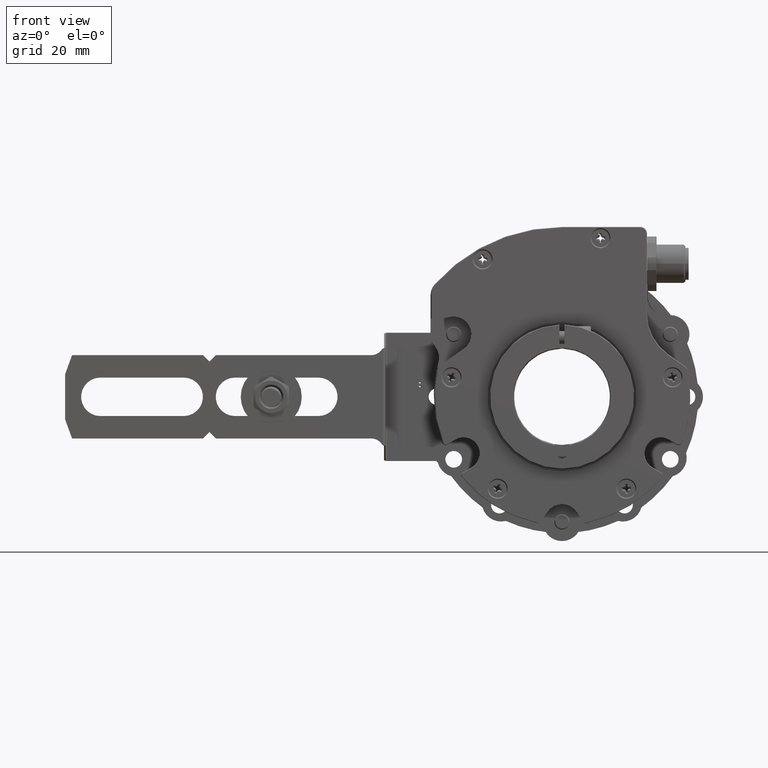
[diagram: clean part render]
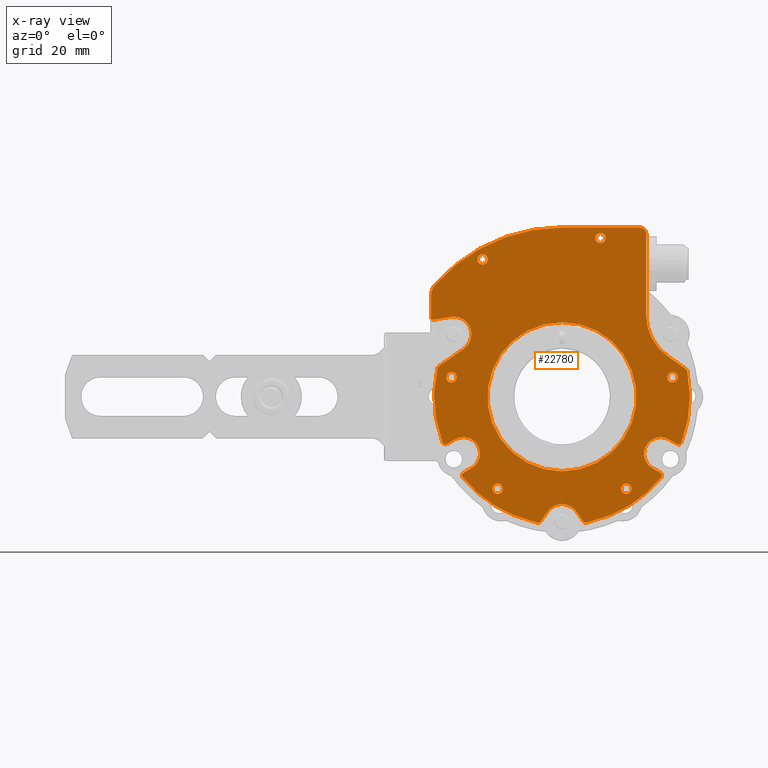
[diagram: x-ray — body ghosted, one internal face saturated and labeled with its STEP entity id]
A machine part, front view, then the same camera in x-ray: the body is ghosted and one INTERNAL B-rep face — a face not visible from any outside direction — is saturated and labeled: STEP entity #22780.
In plain terms, the highlighted planar face has unit normal (0, -1, 0).
Its self-contained STEP definition (entity closure, byte-faithful):
#23 = DIRECTION ( 'NONE',  ( 0.0000000000000000000, 0.0000000000000000000, -1.000000000000000000 ) ) ;
#71 = CARTESIAN_POINT ( 'NONE',  ( 34.46827135542729800, 8.673617379884035500E-016, 7.677686218342458300 ) ) ;
#81 = CARTESIAN_POINT ( 'NONE',  ( 0.0000000000000000000, 8.673617379884035500E-016, 52.79999999999999700 ) ) ;
#156 = EDGE_CURVE ( 'NONE', #17015, #39426, #8266, .T. ) ;
#170 = AXIS2_PLACEMENT_3D ( 'NONE', #3034, #13963, #39318 ) ;
#249 = CARTESIAN_POINT ( 'NONE',  ( -39.82635182233306600, 8.673617379884035500E-016, 24.01782813788613400 ) ) ;
#612 = EDGE_CURVE ( 'NONE', #29076, #36024, #23530, .T. ) ;
#636 = VERTEX_POINT ( 'NONE', #81 ) ;
#718 = CARTESIAN_POINT ( 'NONE',  ( 34.46827135542729800, 8.673617379884035500E-016, 6.077686218342461400 ) ) ;
#809 = CARTESIAN_POINT ( 'NONE',  ( -7.456542864244902100, 8.673617379884035500E-016, -38.32725932442939200 ) ) ;
#879 = CIRCLE ( 'NONE', #39196, 1.600000000000000800 ) ;
#1171 = CARTESIAN_POINT ( 'NONE',  ( 30.96579036634502200, 8.673617379884035500E-016, -25.16207119828520800 ) ) ;
#1192 = DIRECTION ( 'NONE',  ( 0.0000000000000000000, 0.0000000000000000000, -1.000000000000000000 ) ) ;
#1201 = DIRECTION ( 'NONE',  ( 0.0000000000000000000, -1.000000000000000000, 0.0000000000000000000 ) ) ;
#1244 = LINE ( 'NONE', #36156, #9742 ) ;
#1545 = EDGE_CURVE ( 'NONE', #2958, #44939, #30282, .T. ) ;
#1677 = ORIENTED_EDGE ( 'NONE', *, *, #11105, .T. ) ;
#1731 = ORIENTED_EDGE ( 'NONE', *, *, #29315, .T. ) ;
#1884 = DIRECTION ( 'NONE',  ( 0.0000000000000000000, 0.0000000000000000000, 1.000000000000000000 ) ) ;
#2067 = CARTESIAN_POINT ( 'NONE',  ( 20.07517527228646200, 8.673617379884035500E-016, -27.07032155011482300 ) ) ;
#2120 = EDGE_CURVE ( 'NONE', #2917, #27877, #21746, .T. ) ;
#2223 = VERTEX_POINT ( 'NONE', #1171 ) ;
#2231 = VERTEX_POINT ( 'NONE', #44575 ) ;
#2363 = FACE_BOUND ( 'NONE', #7240, .T. ) ;
#2452 = ORIENTED_EDGE ( 'NONE', *, *, #18770, .T. ) ;
#2459 = VECTOR ( 'NONE', #43955, 1000.000000000000000 ) ;
#2469 = EDGE_CURVE ( 'NONE', #20898, #23660, #8099, .T. ) ;
#2531 = AXIS2_PLACEMENT_3D ( 'NONE', #16836, #42199, #20504 ) ;
#2688 = LINE ( 'NONE', #16485, #40114 ) ;
#2733 = VECTOR ( 'NONE', #39721, 1000.000000000000100 ) ;
#2750 = AXIS2_PLACEMENT_3D ( 'NONE', #32240, #10493, #35852 ) ;
#2917 = VERTEX_POINT ( 'NONE', #12664 ) ;
#2940 = CARTESIAN_POINT ( 'NONE',  ( 2.847303808017595700E-015, 8.673617379884035500E-016, -23.25000000000000000 ) ) ;
#2958 = VERTEX_POINT ( 'NONE', #46754 ) ;
#2987 = CARTESIAN_POINT ( 'NONE',  ( -30.96579036634502200, 8.673617379884035500E-016, -25.16207119828521500 ) ) ;
#3034 = CARTESIAN_POINT ( 'NONE',  ( 28.50000000000000000, 8.673617379884035500E-016, 0.0000000000000000000 ) ) ;
#3210 = DIRECTION ( 'NONE',  ( 0.0000000000000000000, 0.0000000000000000000, -1.000000000000000000 ) ) ;
#3455 = ORIENTED_EDGE ( 'NONE', *, *, #42019, .F. ) ;
#3494 = CIRCLE ( 'NONE', #13583, 2.000000000000001800 ) ;
#3543 = DIRECTION ( 'NONE',  ( 0.0000000000000000000, 0.0000000000000000000, 1.000000000000000000 ) ) ;
#3550 = CARTESIAN_POINT ( 'NONE',  ( 0.0000000000000000000, 8.673617379884035500E-016, 0.0000000000000000000 ) ) ;
#3667 = EDGE_LOOP ( 'NONE', ( #14674, #13079, #1677, #4166, #18158, #36697, #45677, #27022, #37484, #14829, #15797, #4818, #11692, #44128, #31816, #9592, #2452, #40258, #37236, #17314, #32697, #6858, #3455, #24861, #14536, #9982, #3822, #10752, #18643, #12634, #19700, #12768, #15591, #19574, #43676, #1731, #31662, #12792 ) ) ;
#3683 = CIRCLE ( 'NONE', #4558, 1.599999999999997200 ) ;
#3790 = CARTESIAN_POINT ( 'NONE',  ( 4.505336243589449700, 8.673617379884035500E-016, -35.84532960006924200 ) ) ;
#3822 = ORIENTED_EDGE ( 'NONE', *, *, #32115, .T. ) ;
#4009 = DIRECTION ( 'NONE',  ( 0.0000000000000000000, -1.000000000000000000, 0.0000000000000000000 ) ) ;
#4151 = CARTESIAN_POINT ( 'NONE',  ( -39.99999999999999300, 8.673617379884035500E-016, 24.00263589089834300 ) ) ;
#4166 = ORIENTED_EDGE ( 'NONE', *, *, #24952, .T. ) ;
#4337 = DIRECTION ( 'NONE',  ( 0.0000000000000000000, 0.0000000000000000000, -1.000000000000000000 ) ) ;
#4426 = DIRECTION ( 'NONE',  ( 0.0000000000000000000, 0.0000000000000000000, -1.000000000000000000 ) ) ;
#4558 = AXIS2_PLACEMENT_3D ( 'NONE', #16943, #42319, #20610 ) ;
#4583 = EDGE_CURVE ( 'NONE', #25830, #36124, #21650, .T. ) ;
#4714 = DIRECTION ( 'NONE',  ( 0.0000000000000000000, -1.000000000000000000, 0.0000000000000000000 ) ) ;
#4764 = CIRCLE ( 'NONE', #5165, 1.599999999999997200 ) ;
#4818 = ORIENTED_EDGE ( 'NONE', *, *, #37714, .T. ) ;
#4958 = CARTESIAN_POINT ( 'NONE',  ( 32.90956523655881900, 8.673617379884035500E-016, 12.70314331352077800 ) ) ;
#5165 = AXIS2_PLACEMENT_3D ( 'NONE', #46621, #24932, #3210 ) ;
#5526 = VECTOR ( 'NONE', #7833, 1000.000000000000100 ) ;
#5710 = DIRECTION ( 'NONE',  ( 0.8660254037844387100, 0.0000000000000000000, -0.4999999999999997200 ) ) ;
#5798 = CIRCLE ( 'NONE', #44376, 1.600000000000000800 ) ;
#5899 = CIRCLE ( 'NONE', #40082, 1.599999999999997200 ) ;
#5922 = AXIS2_PLACEMENT_3D ( 'NONE', #41569, #19841, #45173 ) ;
#6366 = CARTESIAN_POINT ( 'NONE',  ( -34.46827135542729800, 8.673617379884035500E-016, 6.077686218342452500 ) ) ;
#6382 = CARTESIAN_POINT ( 'NONE',  ( -5.308201962077027300, 8.673617379884035500E-016, 30.10430928238725200 ) ) ;
#6740 = EDGE_LOOP ( 'NONE', ( #24458, #22684 ) ) ;
#6858 = ORIENTED_EDGE ( 'NONE', *, *, #2120, .T. ) ;
#6913 = AXIS2_PLACEMENT_3D ( 'NONE', #12713, #38075, #16338 ) ;
#6980 = AXIS2_PLACEMENT_3D ( 'NONE', #19019, #44381, #22673 ) ;
#7067 = CARTESIAN_POINT ( 'NONE',  ( -13.81866986173577600, 8.673617379884035500E-016, -9.675936805218736200 ) ) ;
#7240 = EDGE_LOOP ( 'NONE', ( #43205, #36816 ) ) ;
#7397 = EDGE_CURVE ( 'NONE', #43345, #21730, #39655, .T. ) ;
#7563 = EDGE_CURVE ( 'NONE', #16914, #31753, #15811, .T. ) ;
#7833 = DIRECTION ( 'NONE',  ( -0.8660254037844407100, -0.0000000000000000000, 0.4999999999999963900 ) ) ;
#7958 = VECTOR ( 'NONE', #46506, 1000.000000000000000 ) ;
#7989 = DIRECTION ( 'NONE',  ( 0.0000000000000000000, 0.0000000000000000000, -1.000000000000000000 ) ) ;
#8099 = CIRCLE ( 'NONE', #32119, 0.9999999999999991100 ) ;
#8137 = VERTEX_POINT ( 'NONE', #42337 ) ;
#8266 = CIRCLE ( 'NONE', #18970, 39.90000000000000600 ) ;
#8270 = CIRCLE ( 'NONE', #21235, 5.499999999999998200 ) ;
#8368 = DIRECTION ( 'NONE',  ( 0.0000000000000000000, -1.000000000000000000, 0.0000000000000000000 ) ) ;
#8435 = AXIS2_PLACEMENT_3D ( 'NONE', #25703, #4009, #29341 ) ;
#8437 = VERTEX_POINT ( 'NONE', #13861 ) ;
#8448 = DIRECTION ( 'NONE',  ( 0.0000000000000000000, -1.000000000000000000, 0.0000000000000000000 ) ) ;
#8483 = VERTEX_POINT ( 'NONE', #71 ) ;
#8545 = EDGE_CURVE ( 'NONE', #10854, #2917, #15194, .T. ) ;
#8587 = CARTESIAN_POINT ( 'NONE',  ( -24.75000000000006000, 8.673617379884035500E-016, 41.26825748732967700 ) ) ;
#8634 = DIRECTION ( 'NONE',  ( -0.8660254037844407100, 0.0000000000000000000, -0.4999999999999963900 ) ) ;
#8672 = DIRECTION ( 'NONE',  ( -0.0000000000000000000, 1.000000000000000000, -0.0000000000000000000 ) ) ;
#8718 = AXIS2_PLACEMENT_3D ( 'NONE', #13714, #39061, #17321 ) ;
#8798 = DIRECTION ( 'NONE',  ( 0.0000000000000000000, -1.000000000000000000, 0.0000000000000000000 ) ) ;
#8846 = EDGE_CURVE ( 'NONE', #45348, #18548, #2688, .T. ) ;
#9409 = VECTOR ( 'NONE', #24173, 1000.000000000000000 ) ;
#9452 = CARTESIAN_POINT ( 'NONE',  ( 30.74390183434760700, 8.673617379884035500E-016, -17.74999999999992900 ) ) ;
#9592 = ORIENTED_EDGE ( 'NONE', *, *, #43006, .T. ) ;
#9742 = VECTOR ( 'NONE', #10793, 1000.000000000000100 ) ;
#9885 = VERTEX_POINT ( 'NONE', #37148 ) ;
#9937 = CARTESIAN_POINT ( 'NONE',  ( 0.0000000000000000000, 8.673617379884035500E-016, 52.79999999999999700 ) ) ;
#9962 = EDGE_CURVE ( 'NONE', #21730, #45076, #46821, .T. ) ;
#9982 = ORIENTED_EDGE ( 'NONE', *, *, #33762, .T. ) ;
#9995 = DIRECTION ( 'NONE',  ( 0.0000000000000000000, 0.0000000000000000000, -1.000000000000000000 ) ) ;
#10112 = DIRECTION ( 'NONE',  ( -0.0000000000000000000, -1.000000000000000000, -0.0000000000000000000 ) ) ;
#10308 = AXIS2_PLACEMENT_3D ( 'NONE', #39184, #17460, #42830 ) ;
#10493 = DIRECTION ( 'NONE',  ( 0.0000000000000000000, -1.000000000000000000, 0.0000000000000000000 ) ) ;
#10577 = VERTEX_POINT ( 'NONE', #16151 ) ;
#10701 = EDGE_CURVE ( 'NONE', #14318, #16690, #3683, .T. ) ;
#10715 = AXIS2_PLACEMENT_3D ( 'NONE', #14197, #39529, #17799 ) ;
#10752 = ORIENTED_EDGE ( 'NONE', *, *, #29012, .T. ) ;
#10793 = DIRECTION ( 'NONE',  ( 0.8191520442889929100, 0.0000000000000000000, -0.5735764363510443800 ) ) ;
#10854 = VERTEX_POINT ( 'NONE', #3790 ) ;
#10911 = AXIS2_PLACEMENT_3D ( 'NONE', #42054, #20349, #45661 ) ;
#11054 = AXIS2_PLACEMENT_3D ( 'NONE', #13903, #39264, #17530 ) ;
#11062 = ORIENTED_EDGE ( 'NONE', *, *, #36513, .T. ) ;
#11081 = CIRCLE ( 'NONE', #25785, 5.499999999999998200 ) ;
#11105 = EDGE_CURVE ( 'NONE', #36024, #636, #46739, .T. ) ;
#11175 = EDGE_LOOP ( 'NONE', ( #38312, #22516 ) ) ;
#11420 = CARTESIAN_POINT ( 'NONE',  ( 33.31890183434759900, 8.673617379884035500E-016, -13.28996917051005700 ) ) ;
#11611 = CARTESIAN_POINT ( 'NONE',  ( -35.79999999999999700, 8.673617379884035500E-016, 31.67333263172665500 ) ) ;
#11692 = ORIENTED_EDGE ( 'NONE', *, *, #38882, .T. ) ;
#11864 = VERTEX_POINT ( 'NONE', #14786 ) ;
#11999 = FACE_BOUND ( 'NONE', #6740, .T. ) ;
#12375 = LINE ( 'NONE', #7067, #2733 ) ;
#12588 = EDGE_CURVE ( 'NONE', #17015, #35976, #39911, .T. ) ;
#12593 = CIRCLE ( 'NONE', #5922, 1.000000000000000900 ) ;
#12605 = CIRCLE ( 'NONE', #10715, 0.9999999999999940000 ) ;
#12634 = ORIENTED_EDGE ( 'NONE', *, *, #9962, .T. ) ;
#12664 = CARTESIAN_POINT ( 'NONE',  ( -4.505336243589449700, 8.673617379884035500E-016, -35.84532960006924200 ) ) ;
#12713 = CARTESIAN_POINT ( 'NONE',  ( 0.0000000000000000000, 8.673617379884035500E-016, 0.0000000000000000000 ) ) ;
#12731 = CARTESIAN_POINT ( 'NONE',  ( 37.27388805272031600, 8.673617379884035500E-016, -14.23612550637544600 ) ) ;
#12768 = ORIENTED_EDGE ( 'NONE', *, *, #23619, .T. ) ;
#12792 = ORIENTED_EDGE ( 'NONE', *, *, #20301, .F. ) ;
#12926 = DIRECTION ( 'NONE',  ( 0.0000000000000000000, 1.000000000000000000, 0.0000000000000000000 ) ) ;
#13079 = ORIENTED_EDGE ( 'NONE', *, *, #612, .T. ) ;
#13099 = DIRECTION ( 'NONE',  ( 0.0000000000000000000, 0.0000000000000000000, 1.000000000000000000 ) ) ;
#13128 = FACE_BOUND ( 'NONE', #35998, .T. ) ;
#13151 = AXIS2_PLACEMENT_3D ( 'NONE', #46943, #25257, #3543 ) ;
#13546 = VERTEX_POINT ( 'NONE', #8587 ) ;
#13583 = AXIS2_PLACEMENT_3D ( 'NONE', #35989, #14315, #39637 ) ;
#13604 = DIRECTION ( 'NONE',  ( 1.000000000000000000, 0.0000000000000000000, 0.0000000000000000000 ) ) ;
#13710 = EDGE_CURVE ( 'NONE', #8483, #46486, #27345, .T. ) ;
#13714 = CARTESIAN_POINT ( 'NONE',  ( 41.80000000000000400, 8.673617379884035500E-016, 25.40000000000016600 ) ) ;
#13844 = DIRECTION ( 'NONE',  ( 0.0000000000000000000, -1.000000000000000000, 0.0000000000000000000 ) ) ;
#13861 = CARTESIAN_POINT ( 'NONE',  ( 35.83970539475741600, 8.673617379884035500E-016, -14.74535578468681700 ) ) ;
#13903 = CARTESIAN_POINT ( 'NONE',  ( 36.33970539475740900, 8.673617379884035500E-016, -13.87933038090237900 ) ) ;
#13963 = DIRECTION ( 'NONE',  ( 0.0000000000000000000, -1.000000000000000000, 0.0000000000000000000 ) ) ;
#14197 = CARTESIAN_POINT ( 'NONE',  ( 7.456542864244899400, 8.673617379884035500E-016, -38.32725932442939900 ) ) ;
#14315 = DIRECTION ( 'NONE',  ( -0.0000000000000000000, 1.000000000000000000, -0.0000000000000000000 ) ) ;
#14318 = VERTEX_POINT ( 'NONE', #36607 ) ;
#14471 = CARTESIAN_POINT ( 'NONE',  ( -7.456542864244902100, 8.673617379884035500E-016, -39.32725932442939200 ) ) ;
#14536 = ORIENTED_EDGE ( 'NONE', *, *, #19936, .T. ) ;
#14674 = ORIENTED_EDGE ( 'NONE', *, *, #29429, .T. ) ;
#14786 = CARTESIAN_POINT ( 'NONE',  ( 26.30000000000000100, 8.673617379884035500E-016, 50.79999999999999700 ) ) ;
#14817 = CARTESIAN_POINT ( 'NONE',  ( -28.16890183434761500, 8.673617379884035500E-016, -22.21003082948978900 ) ) ;
#14829 = ORIENTED_EDGE ( 'NONE', *, *, #156, .T. ) ;
#15180 = LINE ( 'NONE', #25884, #5526 ) ;
#15194 = CIRCLE ( 'NONE', #8435, 5.499999999999998200 ) ;
#15236 = VERTEX_POINT ( 'NONE', #45547 ) ;
#15241 = VERTEX_POINT ( 'NONE', #38761 ) ;
#15355 = EDGE_CURVE ( 'NONE', #11864, #16914, #28375, .T. ) ;
#15591 = ORIENTED_EDGE ( 'NONE', *, *, #2469, .F. ) ;
#15685 = CARTESIAN_POINT ( 'NONE',  ( -38.61929592412998600, 8.673617379884035500E-016, 9.393720759812678600 ) ) ;
#15797 = ORIENTED_EDGE ( 'NONE', *, *, #30990, .T. ) ;
#15811 = CIRCLE ( 'NONE', #8718, 15.50000000000000000 ) ;
#15842 = VERTEX_POINT ( 'NONE', #42351 ) ;
#16045 = AXIS2_PLACEMENT_3D ( 'NONE', #30081, #8368, #33729 ) ;
#16151 = CARTESIAN_POINT ( 'NONE',  ( -37.27388805272031600, 8.673617379884035500E-016, -14.23612550637545300 ) ) ;
#16169 = ORIENTED_EDGE ( 'NONE', *, *, #40599, .T. ) ;
#16338 = DIRECTION ( 'NONE',  ( 0.0000000000000000000, 0.0000000000000000000, 1.000000000000000000 ) ) ;
#16485 = CARTESIAN_POINT ( 'NONE',  ( 28.16890183434762200, 8.673617379884035500E-016, -22.21003082948978100 ) ) ;
#16555 = CARTESIAN_POINT ( 'NONE',  ( -38.82438825973105900, 8.673617379884035500E-016, 9.202003926192260200 ) ) ;
#16690 = VERTEX_POINT ( 'NONE', #19307 ) ;
#16836 = CARTESIAN_POINT ( 'NONE',  ( -24.75000000000006000, 8.673617379884035500E-016, 42.86825748732967900 ) ) ;
#16914 = VERTEX_POINT ( 'NONE', #31505 ) ;
#16943 = CARTESIAN_POINT ( 'NONE',  ( -20.07517527228645400, 8.673617379884035500E-016, -28.67032155011482800 ) ) ;
#17015 = VERTEX_POINT ( 'NONE', #35300 ) ;
#17080 = EDGE_CURVE ( 'NONE', #2231, #10854, #12375, .T. ) ;
#17115 = VECTOR ( 'NONE', #24583, 999.9999999999998900 ) ;
#17268 = DIRECTION ( 'NONE',  ( 0.0000000000000000000, -1.000000000000000000, 0.0000000000000000000 ) ) ;
#17314 = ORIENTED_EDGE ( 'NONE', *, *, #17080, .T. ) ;
#17321 = DIRECTION ( 'NONE',  ( 0.0000000000000000000, 0.0000000000000000000, -1.000000000000000000 ) ) ;
#17460 = DIRECTION ( 'NONE',  ( 0.0000000000000000000, -1.000000000000000000, 0.0000000000000000000 ) ) ;
#17497 = CARTESIAN_POINT ( 'NONE',  ( 26.30000000000000100, 8.673617379884035500E-016, 52.79999999999999700 ) ) ;
#17530 = DIRECTION ( 'NONE',  ( -6.938893903907234700E-015, 0.0000000000000000000, -1.000000000000000000 ) ) ;
#17704 = LINE ( 'NONE', #14817, #35855 ) ;
#17799 = DIRECTION ( 'NONE',  ( 0.0000000000000000000, 0.0000000000000000000, -1.000000000000000000 ) ) ;
#17992 = VERTEX_POINT ( 'NONE', #2067 ) ;
#18158 = ORIENTED_EDGE ( 'NONE', *, *, #46715, .T. ) ;
#18440 = DIRECTION ( 'NONE',  ( 0.8660254037844391500, -0.0000000000000000000, 0.4999999999999990600 ) ) ;
#18548 = VERTEX_POINT ( 'NONE', #34191 ) ;
#18621 = CARTESIAN_POINT ( 'NONE',  ( 13.81866986173578100, 8.673617379884035500E-016, -9.675936805218752200 ) ) ;
#18640 = EDGE_CURVE ( 'NONE', #20898, #45546, #38330, .T. ) ;
#18642 = CARTESIAN_POINT ( 'NONE',  ( 10.11450387768230100, 8.673617379884035500E-016, -44.25897435897435600 ) ) ;
#18643 = ORIENTED_EDGE ( 'NONE', *, *, #7397, .T. ) ;
#18721 = CARTESIAN_POINT ( 'NONE',  ( -8.889178518051185300, 8.673617379884035500E-016, -38.89720433751271100 ) ) ;
#18770 = EDGE_CURVE ( 'NONE', #8137, #22179, #8270, .T. ) ;
#18967 = DIRECTION ( 'NONE',  ( 0.0000000000000000000, 1.000000000000000000, 0.0000000000000000000 ) ) ;
#18970 = AXIS2_PLACEMENT_3D ( 'NONE', #3550, #33044, #25716 ) ;
#19019 = CARTESIAN_POINT ( 'NONE',  ( 0.0000000000000000000, 8.673617379884035500E-016, 0.0000000000000000000 ) ) ;
#19262 = AXIS2_PLACEMENT_3D ( 'NONE', #40695, #18967, #44329 ) ;
#19307 = CARTESIAN_POINT ( 'NONE',  ( -20.07517527228645400, 8.673617379884035500E-016, -27.07032155011483000 ) ) ;
#19574 = ORIENTED_EDGE ( 'NONE', *, *, #18640, .T. ) ;
#19599 = AXIS2_PLACEMENT_3D ( 'NONE', #43437, #21733, #23 ) ;
#19700 = ORIENTED_EDGE ( 'NONE', *, *, #22520, .T. ) ;
#19841 = DIRECTION ( 'NONE',  ( -0.0000000000000000000, 1.000000000000000000, -0.0000000000000000000 ) ) ;
#19910 = CARTESIAN_POINT ( 'NONE',  ( 38.10013950781947800, 8.673617379884035500E-016, 7.847889492385218300 ) ) ;
#19929 = CARTESIAN_POINT ( 'NONE',  ( 20.07517527228646200, 8.673617379884035500E-016, -30.27032155011482600 ) ) ;
#19936 = EDGE_CURVE ( 'NONE', #40929, #35286, #11081, .T. ) ;
#19965 = VERTEX_POINT ( 'NONE', #2987 ) ;
#20041 = DIRECTION ( 'NONE',  ( 0.0000000000000000000, -1.000000000000000000, 0.0000000000000000000 ) ) ;
#20165 = CARTESIAN_POINT ( 'NONE',  ( 34.46827135542729800, 8.673617379884035500E-016, 4.477686218342463500 ) ) ;
#20301 = EDGE_CURVE ( 'NONE', #15236, #25830, #37146, .T. ) ;
#20349 = DIRECTION ( 'NONE',  ( 0.0000000000000000000, -1.000000000000000000, 0.0000000000000000000 ) ) ;
#20449 = ORIENTED_EDGE ( 'NONE', *, *, #1545, .T. ) ;
#20504 = DIRECTION ( 'NONE',  ( 0.0000000000000000000, 0.0000000000000000000, -1.000000000000000000 ) ) ;
#20517 = FACE_BOUND ( 'NONE', #11175, .T. ) ;
#20610 = DIRECTION ( 'NONE',  ( 0.0000000000000000000, 0.0000000000000000000, -1.000000000000000000 ) ) ;
#20719 = CARTESIAN_POINT ( 'NONE',  ( -39.54476987447697700, 8.673617379884035500E-016, 34.98644273964784900 ) ) ;
#20898 = VERTEX_POINT ( 'NONE', #15685 ) ;
#20914 = CIRCLE ( 'NONE', #19599, 1.000000000000000900 ) ;
#21013 = CARTESIAN_POINT ( 'NONE',  ( 24.30000000000000100, 8.673617379884035500E-016, 52.79999999999999700 ) ) ;
#21235 = AXIS2_PLACEMENT_3D ( 'NONE', #18642, #43993, #22282 ) ;
#21271 = DIRECTION ( 'NONE',  ( 0.0000000000000000000, -1.000000000000000000, 0.0000000000000000000 ) ) ;
#21650 = CIRCLE ( 'NONE', #42796, 1.000000000000000900 ) ;
#21652 = FACE_BOUND ( 'NONE', #31822, .T. ) ;
#21730 = VERTEX_POINT ( 'NONE', #43989 ) ;
#21733 = DIRECTION ( 'NONE',  ( -0.0000000000000000000, 1.000000000000000000, -0.0000000000000000000 ) ) ;
#21746 = LINE ( 'NONE', #18621, #2459 ) ;
#21916 = CIRCLE ( 'NONE', #16045, 0.9999999999999940000 ) ;
#22146 = CIRCLE ( 'NONE', #25096, 39.90000000000000600 ) ;
#22179 = VERTEX_POINT ( 'NONE', #46497 ) ;
#22282 = DIRECTION ( 'NONE',  ( 0.0000000000000000000, 0.0000000000000000000, 1.000000000000000000 ) ) ;
#22516 = ORIENTED_EDGE ( 'NONE', *, *, #44099, .F. ) ;
#22520 = EDGE_CURVE ( 'NONE', #45076, #10577, #12593, .T. ) ;
#22673 = DIRECTION ( 'NONE',  ( 0.0000000000000000000, 0.0000000000000000000, 1.000000000000000000 ) ) ;
#22684 = ORIENTED_EDGE ( 'NONE', *, *, #36572, .T. ) ;
#22717 = EDGE_CURVE ( 'NONE', #44939, #2958, #33566, .T. ) ;
#22719 = EDGE_CURVE ( 'NONE', #46486, #8483, #23898, .T. ) ;
#22780 = ADVANCED_FACE ( 'NONE', ( #11999, #40927, #13128, #21652, #2363, #39784, #30144, #20517 ), #35665, .F. ) ;
#22889 = DIRECTION ( 'NONE',  ( 0.0000000000000000000, -1.000000000000000000, 0.0000000000000000000 ) ) ;
#22896 = CARTESIAN_POINT ( 'NONE',  ( -33.77499074759302300, 8.673617379884035500E-016, 19.50000000000016000 ) ) ;
#23073 = AXIS2_PLACEMENT_3D ( 'NONE', #45292, #23580, #1884 ) ;
#23521 = EDGE_LOOP ( 'NONE', ( #16169, #32730 ) ) ;
#23530 = CIRCLE ( 'NONE', #39941, 5.000000000000000900 ) ;
#23539 = DIRECTION ( 'NONE',  ( 0.0000000000000000000, 0.0000000000000000000, -1.000000000000000000 ) ) ;
#23580 = DIRECTION ( 'NONE',  ( 0.0000000000000000000, 1.000000000000000000, 0.0000000000000000000 ) ) ;
#23619 = EDGE_CURVE ( 'NONE', #10577, #23660, #22146, .T. ) ;
#23660 = VERTEX_POINT ( 'NONE', #16555 ) ;
#23898 = CIRCLE ( 'NONE', #32661, 1.599999999999997200 ) ;
#24049 = CARTESIAN_POINT ( 'NONE',  ( -30.62032034766227900, 8.673617379884035500E-016, 14.99466375641069900 ) ) ;
#24173 = DIRECTION ( 'NONE',  ( 0.8191520442889931300, 0.0000000000000000000, 0.5735764363510441600 ) ) ;
#24458 = ORIENTED_EDGE ( 'NONE', *, *, #10701, .T. ) ;
#24495 = VECTOR ( 'NONE', #39483, 1000.000000000000000 ) ;
#24522 = AXIS2_PLACEMENT_3D ( 'NONE', #9452, #34787, #13099 ) ;
#24583 = DIRECTION ( 'NONE',  ( -0.9848077530122089100, 0.0000000000000000000, -0.1736481776669261400 ) ) ;
#24827 = VERTEX_POINT ( 'NONE', #19929 ) ;
#24861 = ORIENTED_EDGE ( 'NONE', *, *, #36396, .F. ) ;
#24932 = DIRECTION ( 'NONE',  ( 0.0000000000000000000, -1.000000000000000000, 0.0000000000000000000 ) ) ;
#24952 = EDGE_CURVE ( 'NONE', #636, #42899, #28280, .T. ) ;
#25096 = AXIS2_PLACEMENT_3D ( 'NONE', #34624, #12926, #38281 ) ;
#25097 = AXIS2_PLACEMENT_3D ( 'NONE', #29118, #28065, #7989 ) ;
#25119 = VERTEX_POINT ( 'NONE', #25302 ) ;
#25257 = DIRECTION ( 'NONE',  ( 0.0000000000000000000, 1.000000000000000000, 0.0000000000000000000 ) ) ;
#25283 = EDGE_CURVE ( 'NONE', #45546, #25119, #44690, .T. ) ;
#25302 = CARTESIAN_POINT ( 'NONE',  ( -34.73005572476111500, 8.673617379884035500E-016, 24.91644264156730800 ) ) ;
#25703 = CARTESIAN_POINT ( 'NONE',  ( 0.0000000000000000000, 8.673617379884035500E-016, -39.00000000000000000 ) ) ;
#25716 = DIRECTION ( 'NONE',  ( 0.0000000000000000000, 0.0000000000000000000, 1.000000000000000000 ) ) ;
#25785 = AXIS2_PLACEMENT_3D ( 'NONE', #31854, #10112, #35449 ) ;
#25830 = VERTEX_POINT ( 'NONE', #4151 ) ;
#25872 = DIRECTION ( 'NONE',  ( 0.0000000000000000000, 0.0000000000000000000, -1.000000000000000000 ) ) ;
#25884 = CARTESIAN_POINT ( 'NONE',  ( 33.31890183434759900, 8.673617379884035500E-016, -13.28996917051005700 ) ) ;
#25905 = CARTESIAN_POINT ( 'NONE',  ( 11.99999999999998900, 8.673617379884035500E-016, 51.10000000000000100 ) ) ;
#26056 = DIRECTION ( 'NONE',  ( 0.0000000000000000000, -1.000000000000000000, 0.0000000000000000000 ) ) ;
#26141 = DIRECTION ( 'NONE',  ( 0.0000000000000000000, -1.000000000000000000, 0.0000000000000000000 ) ) ;
#26376 = CARTESIAN_POINT ( 'NONE',  ( -30.68970539475742500, 8.673617379884035500E-016, -23.66541744366655600 ) ) ;
#26408 = CARTESIAN_POINT ( 'NONE',  ( -39.99999999999999300, 8.673617379884035500E-016, 25.00263589089834300 ) ) ;
#26440 = EDGE_CURVE ( 'NONE', #2231, #42361, #21916, .T. ) ;
#26527 = DIRECTION ( 'NONE',  ( 0.0000000000000000000, 0.0000000000000000000, -1.000000000000000000 ) ) ;
#26687 = CARTESIAN_POINT ( 'NONE',  ( -33.31890183434759900, 8.673617379884035500E-016, -13.28996917051006400 ) ) ;
#26975 = VERTEX_POINT ( 'NONE', #25905 ) ;
#27022 = ORIENTED_EDGE ( 'NONE', *, *, #43359, .T. ) ;
#27345 = CIRCLE ( 'NONE', #36828, 1.599999999999997200 ) ;
#27777 = AXIS2_PLACEMENT_3D ( 'NONE', #6366, #31748, #9995 ) ;
#27877 = VERTEX_POINT ( 'NONE', #37099 ) ;
#28065 = DIRECTION ( 'NONE',  ( 0.0000000000000000000, -1.000000000000000000, 0.0000000000000000000 ) ) ;
#28280 = LINE ( 'NONE', #9937, #46418 ) ;
#28375 = LINE ( 'NONE', #17497, #7958 ) ;
#28440 = ORIENTED_EDGE ( 'NONE', *, *, #36589, .T. ) ;
#28780 = ORIENTED_EDGE ( 'NONE', *, *, #39581, .T. ) ;
#29012 = EDGE_CURVE ( 'NONE', #42618, #43345, #17704, .T. ) ;
#29016 = LINE ( 'NONE', #6382, #17115 ) ;
#29076 = VERTEX_POINT ( 'NONE', #33511 ) ;
#29095 = EDGE_CURVE ( 'NONE', #17992, #24827, #5798, .T. ) ;
#29118 = CARTESIAN_POINT ( 'NONE',  ( -34.46827135542729800, 8.673617379884035500E-016, 6.077686218342452500 ) ) ;
#29274 = ORIENTED_EDGE ( 'NONE', *, *, #43143, .T. ) ;
#29315 = EDGE_CURVE ( 'NONE', #25119, #36124, #29016, .T. ) ;
#29341 = DIRECTION ( 'NONE',  ( 0.0000000000000000000, 0.0000000000000000000, -1.000000000000000000 ) ) ;
#29375 = AXIS2_PLACEMENT_3D ( 'NONE', #22896, #1201, #26527 ) ;
#29429 = EDGE_CURVE ( 'NONE', #15236, #29076, #34144, .T. ) ;
#29929 = CARTESIAN_POINT ( 'NONE',  ( 28.16890183434761500, 8.673617379884035500E-016, -22.21003082948979200 ) ) ;
#30078 = DIRECTION ( 'NONE',  ( 0.0000000000000000000, 0.0000000000000000000, -1.000000000000000000 ) ) ;
#30081 = CARTESIAN_POINT ( 'NONE',  ( 7.456542864244899400, 8.673617379884035500E-016, -38.32725932442939900 ) ) ;
#30144 = FACE_OUTER_BOUND ( 'NONE', #3667, .T. ) ;
#30167 = CARTESIAN_POINT ( 'NONE',  ( 20.07517527228646200, 8.673617379884035500E-016, -28.67032155011482400 ) ) ;
#30282 = CIRCLE ( 'NONE', #25097, 1.599999999999997200 ) ;
#30381 = CARTESIAN_POINT ( 'NONE',  ( 30.18970539475743200, 8.673617379884035500E-016, -24.53144284745099700 ) ) ;
#30526 = CARTESIAN_POINT ( 'NONE',  ( -39.99999999999999300, 8.673617379884035500E-016, 25.00263589089834300 ) ) ;
#30990 = EDGE_CURVE ( 'NONE', #39426, #8437, #44223, .T. ) ;
#31360 = AXIS2_PLACEMENT_3D ( 'NONE', #809, #26141, #4426 ) ;
#31397 = CIRCLE ( 'NONE', #31360, 1.000000000000000900 ) ;
#31502 = CARTESIAN_POINT ( 'NONE',  ( 38.67371594417053900, 8.673617379884035500E-016, 8.667041536674240400 ) ) ;
#31505 = CARTESIAN_POINT ( 'NONE',  ( 26.30000000000000100, 8.673617379884035500E-016, 25.40000000000016600 ) ) ;
#31662 = ORIENTED_EDGE ( 'NONE', *, *, #4583, .F. ) ;
#31748 = DIRECTION ( 'NONE',  ( 0.0000000000000000000, -1.000000000000000000, 0.0000000000000000000 ) ) ;
#31753 = VERTEX_POINT ( 'NONE', #4958 ) ;
#31816 = ORIENTED_EDGE ( 'NONE', *, *, #46933, .T. ) ;
#31822 = EDGE_LOOP ( 'NONE', ( #11062, #28440 ) ) ;
#31854 = CARTESIAN_POINT ( 'NONE',  ( -10.11450387768230100, 8.673617379884035500E-016, -44.25897435897435600 ) ) ;
#32060 = CARTESIAN_POINT ( 'NONE',  ( -40.80000000000000400, 8.673617379884035500E-016, 19.50000000000017100 ) ) ;
#32078 = CARTESIAN_POINT ( 'NONE',  ( -7.865459943235269000, 8.673617379884035500E-016, -39.23983086820553700 ) ) ;
#32115 = EDGE_CURVE ( 'NONE', #19965, #42618, #20914, .T. ) ;
#32119 = AXIS2_PLACEMENT_3D ( 'NONE', #42981, #21271, #46609 ) ;
#32240 = CARTESIAN_POINT ( 'NONE',  ( 11.99999999999998900, 8.673617379884035500E-016, 49.50000000000000000 ) ) ;
#32619 = EDGE_LOOP ( 'NONE', ( #34559, #20449 ) ) ;
#32661 = AXIS2_PLACEMENT_3D ( 'NONE', #39001, #17268, #42662 ) ;
#32697 = ORIENTED_EDGE ( 'NONE', *, *, #8545, .T. ) ;
#32708 = CIRCLE ( 'NONE', #10308, 1.599999999999997200 ) ;
#32730 = ORIENTED_EDGE ( 'NONE', *, *, #29095, .T. ) ;
#33044 = DIRECTION ( 'NONE',  ( 0.0000000000000000000, 1.000000000000000000, 0.0000000000000000000 ) ) ;
#33385 = VERTEX_POINT ( 'NONE', #2940 ) ;
#33511 = CARTESIAN_POINT ( 'NONE',  ( -40.79999999999999700, 8.673617379884035500E-016, 31.67333263172665500 ) ) ;
#33566 = CIRCLE ( 'NONE', #27777, 1.599999999999997200 ) ;
#33729 = DIRECTION ( 'NONE',  ( 0.0000000000000000000, 0.0000000000000000000, -1.000000000000000000 ) ) ;
#33762 = EDGE_CURVE ( 'NONE', #35286, #19965, #35586, .T. ) ;
#33816 = DIRECTION ( 'NONE',  ( 0.0000000000000000000, 0.0000000000000000000, -1.000000000000000000 ) ) ;
#34035 = DIRECTION ( 'NONE',  ( -6.938893903907222100E-015, 0.0000000000000000000, -1.000000000000000000 ) ) ;
#34144 = LINE ( 'NONE', #32060, #24495 ) ;
#34168 = DIRECTION ( 'NONE',  ( 0.0000000000000000000, 0.0000000000000000000, -1.000000000000000000 ) ) ;
#34191 = CARTESIAN_POINT ( 'NONE',  ( 30.68970539475743200, 8.673617379884035500E-016, -23.66541744366655200 ) ) ;
#34270 = CARTESIAN_POINT ( 'NONE',  ( -34.46827135542729800, 8.673617379884035500E-016, 4.477686218342454600 ) ) ;
#34559 = ORIENTED_EDGE ( 'NONE', *, *, #22717, .T. ) ;
#34624 = CARTESIAN_POINT ( 'NONE',  ( 0.0000000000000000000, 8.673617379884035500E-016, 0.0000000000000000000 ) ) ;
#34787 = DIRECTION ( 'NONE',  ( 0.0000000000000000000, -1.000000000000000000, 0.0000000000000000000 ) ) ;
#35257 = VERTEX_POINT ( 'NONE', #11420 ) ;
#35286 = VERTEX_POINT ( 'NONE', #18721 ) ;
#35300 = CARTESIAN_POINT ( 'NONE',  ( 39.07957754143955500, 8.673617379884035500E-016, 8.049634723551941200 ) ) ;
#35449 = DIRECTION ( 'NONE',  ( 0.0000000000000000000, 0.0000000000000000000, 1.000000000000000000 ) ) ;
#35503 = CIRCLE ( 'NONE', #6980, 23.25000000000000000 ) ;
#35527 = CARTESIAN_POINT ( 'NONE',  ( 11.99999999999998900, 8.673617379884035500E-016, 49.50000000000000000 ) ) ;
#35586 = CIRCLE ( 'NONE', #6913, 39.90000000000000600 ) ;
#35665 = PLANE ( 'NONE',  #170 ) ;
#35852 = DIRECTION ( 'NONE',  ( 0.0000000000000000000, 0.0000000000000000000, -1.000000000000000000 ) ) ;
#35855 = VECTOR ( 'NONE', #18440, 1000.000000000000000 ) ;
#35976 = VERTEX_POINT ( 'NONE', #31502 ) ;
#35989 = CARTESIAN_POINT ( 'NONE',  ( 24.30000000000000100, 8.673617379884035500E-016, 50.79999999999999700 ) ) ;
#35998 = EDGE_LOOP ( 'NONE', ( #28780, #29274 ) ) ;
#36024 = VERTEX_POINT ( 'NONE', #20719 ) ;
#36124 = VERTEX_POINT ( 'NONE', #249 ) ;
#36156 = CARTESIAN_POINT ( 'NONE',  ( 16.79544052503335600, 8.673617379884035500E-016, 23.98637490818222400 ) ) ;
#36396 = EDGE_CURVE ( 'NONE', #40929, #36667, #37086, .T. ) ;
#36513 = EDGE_CURVE ( 'NONE', #9885, #26975, #5899, .T. ) ;
#36572 = EDGE_CURVE ( 'NONE', #16690, #14318, #4764, .T. ) ;
#36589 = EDGE_CURVE ( 'NONE', #26975, #9885, #43331, .T. ) ;
#36607 = CARTESIAN_POINT ( 'NONE',  ( -20.07517527228645400, 8.673617379884035500E-016, -30.27032155011482600 ) ) ;
#36667 = VERTEX_POINT ( 'NONE', #14471 ) ;
#36697 = ORIENTED_EDGE ( 'NONE', *, *, #15355, .T. ) ;
#36816 = ORIENTED_EDGE ( 'NONE', *, *, #13710, .T. ) ;
#36828 = AXIS2_PLACEMENT_3D ( 'NONE', #718, #26056, #4337 ) ;
#37034 = AXIS2_PLACEMENT_3D ( 'NONE', #30526, #8798, #34168 ) ;
#37086 = CIRCLE ( 'NONE', #10911, 1.000000000000000900 ) ;
#37099 = CARTESIAN_POINT ( 'NONE',  ( -6.705581468056939400, 8.673617379884035500E-016, -38.98760543173632700 ) ) ;
#37146 = CIRCLE ( 'NONE', #37034, 1.000000000000000900 ) ;
#37148 = CARTESIAN_POINT ( 'NONE',  ( 11.99999999999998900, 8.673617379884035500E-016, 47.90000000000000600 ) ) ;
#37236 = ORIENTED_EDGE ( 'NONE', *, *, #26440, .F. ) ;
#37484 = ORIENTED_EDGE ( 'NONE', *, *, #12588, .F. ) ;
#37714 = EDGE_CURVE ( 'NONE', #8437, #35257, #15180, .T. ) ;
#38075 = DIRECTION ( 'NONE',  ( 0.0000000000000000000, 1.000000000000000000, 0.0000000000000000000 ) ) ;
#38118 = CIRCLE ( 'NONE', #2531, 1.599999999999997200 ) ;
#38281 = DIRECTION ( 'NONE',  ( 0.0000000000000000000, 0.0000000000000000000, 1.000000000000000000 ) ) ;
#38312 = ORIENTED_EDGE ( 'NONE', *, *, #39800, .F. ) ;
#38330 = LINE ( 'NONE', #46026, #9409 ) ;
#38761 = CARTESIAN_POINT ( 'NONE',  ( 0.0000000000000000000, 8.673617379884035500E-016, 23.25000000000000000 ) ) ;
#38882 = EDGE_CURVE ( 'NONE', #35257, #45348, #45767, .T. ) ;
#39001 = CARTESIAN_POINT ( 'NONE',  ( 34.46827135542729800, 8.673617379884035500E-016, 6.077686218342461400 ) ) ;
#39061 = DIRECTION ( 'NONE',  ( 0.0000000000000000000, -1.000000000000000000, 0.0000000000000000000 ) ) ;
#39123 = CARTESIAN_POINT ( 'NONE',  ( 7.456542864244899400, 8.673617379884035500E-016, -39.32725932442939200 ) ) ;
#39184 = CARTESIAN_POINT ( 'NONE',  ( -24.75000000000006000, 8.673617379884035500E-016, 42.86825748732967900 ) ) ;
#39196 = AXIS2_PLACEMENT_3D ( 'NONE', #44597, #22889, #1192 ) ;
#39197 = DIRECTION ( 'NONE',  ( 0.0000000000000000000, 0.0000000000000000000, -1.000000000000000000 ) ) ;
#39264 = DIRECTION ( 'NONE',  ( -0.0000000000000000000, 1.000000000000000000, -0.0000000000000000000 ) ) ;
#39318 = DIRECTION ( 'NONE',  ( 0.0000000000000000000, -0.0000000000000000000, -1.000000000000000000 ) ) ;
#39426 = VERTEX_POINT ( 'NONE', #12731 ) ;
#39483 = DIRECTION ( 'NONE',  ( 4.951339166780651200E-016, 0.0000000000000000000, 1.000000000000000000 ) ) ;
#39492 = CARTESIAN_POINT ( 'NONE',  ( -28.16890183434761500, 8.673617379884035500E-016, -22.21003082948978900 ) ) ;
#39529 = DIRECTION ( 'NONE',  ( 0.0000000000000000000, -1.000000000000000000, 0.0000000000000000000 ) ) ;
#39581 = EDGE_CURVE ( 'NONE', #13546, #15842, #32708, .T. ) ;
#39637 = DIRECTION ( 'NONE',  ( 0.0000000000000000000, 0.0000000000000000000, -1.000000000000000000 ) ) ;
#39655 = CIRCLE ( 'NONE', #41227, 5.149999999999998600 ) ;
#39721 = DIRECTION ( 'NONE',  ( -0.5735764363510468300, 0.0000000000000000000, 0.8191520442889912400 ) ) ;
#39784 = FACE_BOUND ( 'NONE', #23521, .T. ) ;
#39800 = EDGE_CURVE ( 'NONE', #15241, #33385, #35503, .T. ) ;
#39911 = CIRCLE ( 'NONE', #45281, 1.000000000000031300 ) ;
#39941 = AXIS2_PLACEMENT_3D ( 'NONE', #11611, #43644, #25872 ) ;
#40082 = AXIS2_PLACEMENT_3D ( 'NONE', #35527, #13844, #39197 ) ;
#40114 = VECTOR ( 'NONE', #5710, 1000.000000000000100 ) ;
#40258 = ORIENTED_EDGE ( 'NONE', *, *, #42992, .F. ) ;
#40412 = CIRCLE ( 'NONE', #13151, 39.90000000000000600 ) ;
#40599 = EDGE_CURVE ( 'NONE', #24827, #17992, #879, .T. ) ;
#40695 = CARTESIAN_POINT ( 'NONE',  ( 0.0000000000000000000, 8.673617379884035500E-016, 0.0000000000000000000 ) ) ;
#40927 = FACE_BOUND ( 'NONE', #32619, .T. ) ;
#40929 = VERTEX_POINT ( 'NONE', #32078 ) ;
#41227 = AXIS2_PLACEMENT_3D ( 'NONE', #41765, #20041, #45373 ) ;
#41569 = CARTESIAN_POINT ( 'NONE',  ( -36.33970539475740900, 8.673617379884035500E-016, -13.87933038090238500 ) ) ;
#41765 = CARTESIAN_POINT ( 'NONE',  ( -30.74390183434760700, 8.673617379884035500E-016, -17.74999999999992900 ) ) ;
#42019 = EDGE_CURVE ( 'NONE', #36667, #27877, #31397, .T. ) ;
#42054 = CARTESIAN_POINT ( 'NONE',  ( -7.456542864244902100, 8.673617379884035500E-016, -38.32725932442939200 ) ) ;
#42199 = DIRECTION ( 'NONE',  ( 0.0000000000000000000, -1.000000000000000000, 0.0000000000000000000 ) ) ;
#42319 = DIRECTION ( 'NONE',  ( 0.0000000000000000000, -1.000000000000000000, 0.0000000000000000000 ) ) ;
#42337 = CARTESIAN_POINT ( 'NONE',  ( 8.889178518051192400, 8.673617379884035500E-016, -38.89720433751271100 ) ) ;
#42351 = CARTESIAN_POINT ( 'NONE',  ( -24.75000000000006000, 8.673617379884035500E-016, 44.46825748732967300 ) ) ;
#42361 = VERTEX_POINT ( 'NONE', #39123 ) ;
#42618 = VERTEX_POINT ( 'NONE', #26376 ) ;
#42662 = DIRECTION ( 'NONE',  ( 0.0000000000000000000, 0.0000000000000000000, -1.000000000000000000 ) ) ;
#42734 = AXIS2_PLACEMENT_3D ( 'NONE', #30381, #8672, #34035 ) ;
#42796 = AXIS2_PLACEMENT_3D ( 'NONE', #26408, #4714, #30078 ) ;
#42830 = DIRECTION ( 'NONE',  ( 0.0000000000000000000, 0.0000000000000000000, -1.000000000000000000 ) ) ;
#42899 = VERTEX_POINT ( 'NONE', #21013 ) ;
#42981 = CARTESIAN_POINT ( 'NONE',  ( -38.04571948777893900, 8.673617379884035500E-016, 8.574568715523685800 ) ) ;
#42992 = EDGE_CURVE ( 'NONE', #42361, #22179, #12605, .T. ) ;
#43006 = EDGE_CURVE ( 'NONE', #2223, #8137, #40412, .T. ) ;
#43143 = EDGE_CURVE ( 'NONE', #15842, #13546, #38118, .T. ) ;
#43205 = ORIENTED_EDGE ( 'NONE', *, *, #22719, .T. ) ;
#43331 = CIRCLE ( 'NONE', #2750, 1.599999999999997200 ) ;
#43345 = VERTEX_POINT ( 'NONE', #39492 ) ;
#43359 = EDGE_CURVE ( 'NONE', #31753, #35976, #1244, .T. ) ;
#43437 = CARTESIAN_POINT ( 'NONE',  ( -30.18970539475742500, 8.673617379884035500E-016, -24.53144284745100000 ) ) ;
#43644 = DIRECTION ( 'NONE',  ( -0.0000000000000000000, 1.000000000000000000, -0.0000000000000000000 ) ) ;
#43676 = ORIENTED_EDGE ( 'NONE', *, *, #25283, .T. ) ;
#43712 = CIRCLE ( 'NONE', #19262, 23.25000000000000000 ) ;
#43736 = CIRCLE ( 'NONE', #42734, 1.000000000000000900 ) ;
#43955 = DIRECTION ( 'NONE',  ( -0.5735764363510472700, 0.0000000000000000000, -0.8191520442889909100 ) ) ;
#43989 = CARTESIAN_POINT ( 'NONE',  ( -33.31890183434759900, 8.673617379884035500E-016, -13.28996917051006400 ) ) ;
#43993 = DIRECTION ( 'NONE',  ( -0.0000000000000000000, -1.000000000000000000, -0.0000000000000000000 ) ) ;
#44099 = EDGE_CURVE ( 'NONE', #33385, #15241, #43712, .T. ) ;
#44128 = ORIENTED_EDGE ( 'NONE', *, *, #8846, .T. ) ;
#44223 = CIRCLE ( 'NONE', #11054, 0.9999999999999991100 ) ;
#44329 = DIRECTION ( 'NONE',  ( 0.0000000000000000000, 0.0000000000000000000, 1.000000000000000000 ) ) ;
#44376 = AXIS2_PLACEMENT_3D ( 'NONE', #30167, #8448, #33816 ) ;
#44381 = DIRECTION ( 'NONE',  ( 0.0000000000000000000, 1.000000000000000000, 0.0000000000000000000 ) ) ;
#44575 = CARTESIAN_POINT ( 'NONE',  ( 6.705581468056935900, 8.673617379884035500E-016, -38.98760543173633400 ) ) ;
#44597 = CARTESIAN_POINT ( 'NONE',  ( 20.07517527228646200, 8.673617379884035500E-016, -28.67032155011482400 ) ) ;
#44690 = CIRCLE ( 'NONE', #29375, 5.499999999999998200 ) ;
#44939 = VERTEX_POINT ( 'NONE', #34270 ) ;
#45076 = VERTEX_POINT ( 'NONE', #46275 ) ;
#45173 = DIRECTION ( 'NONE',  ( 1.387778780781444400E-014, 0.0000000000000000000, -1.000000000000000000 ) ) ;
#45250 = DIRECTION ( 'NONE',  ( 0.0000000000000000000, -1.000000000000000000, 0.0000000000000000000 ) ) ;
#45281 = AXIS2_PLACEMENT_3D ( 'NONE', #19910, #45250, #23539 ) ;
#45292 = CARTESIAN_POINT ( 'NONE',  ( 0.0000000000000000000, 8.673617379884035500E-016, 0.0000000000000000000 ) ) ;
#45348 = VERTEX_POINT ( 'NONE', #29929 ) ;
#45373 = DIRECTION ( 'NONE',  ( 0.0000000000000000000, 0.0000000000000000000, -1.000000000000000000 ) ) ;
#45546 = VERTEX_POINT ( 'NONE', #24049 ) ;
#45547 = CARTESIAN_POINT ( 'NONE',  ( -40.80000000000001100, 8.673617379884035500E-016, 24.40263589089836000 ) ) ;
#45661 = DIRECTION ( 'NONE',  ( 0.0000000000000000000, 0.0000000000000000000, -1.000000000000000000 ) ) ;
#45676 = VECTOR ( 'NONE', #8634, 1000.000000000000100 ) ;
#45677 = ORIENTED_EDGE ( 'NONE', *, *, #7563, .T. ) ;
#45767 = CIRCLE ( 'NONE', #24522, 5.149999999999996800 ) ;
#46026 = CARTESIAN_POINT ( 'NONE',  ( -17.11896443837090900, 8.673617379884035500E-016, 24.44841494014868000 ) ) ;
#46275 = CARTESIAN_POINT ( 'NONE',  ( -35.83970539475741600, 8.673617379884035500E-016, -14.74535578468682600 ) ) ;
#46418 = VECTOR ( 'NONE', #13604, 1000.000000000000000 ) ;
#46486 = VERTEX_POINT ( 'NONE', #20165 ) ;
#46497 = CARTESIAN_POINT ( 'NONE',  ( 7.865459943235269000, 8.673617379884035500E-016, -39.23983086820553700 ) ) ;
#46506 = DIRECTION ( 'NONE',  ( 1.584222352490246600E-016, 0.0000000000000000000, -1.000000000000000000 ) ) ;
#46609 = DIRECTION ( 'NONE',  ( 0.0000000000000000000, 0.0000000000000000000, -1.000000000000000000 ) ) ;
#46621 = CARTESIAN_POINT ( 'NONE',  ( -20.07517527228645400, 8.673617379884035500E-016, -28.67032155011482800 ) ) ;
#46715 = EDGE_CURVE ( 'NONE', #42899, #11864, #3494, .T. ) ;
#46739 = CIRCLE ( 'NONE', #23073, 52.79999999999999700 ) ;
#46754 = CARTESIAN_POINT ( 'NONE',  ( -34.46827135542729800, 8.673617379884035500E-016, 7.677686218342449500 ) ) ;
#46821 = LINE ( 'NONE', #26687, #45676 ) ;
#46933 = EDGE_CURVE ( 'NONE', #18548, #2223, #43736, .T. ) ;
#46943 = CARTESIAN_POINT ( 'NONE',  ( 0.0000000000000000000, 8.673617379884035500E-016, 0.0000000000000000000 ) ) ;